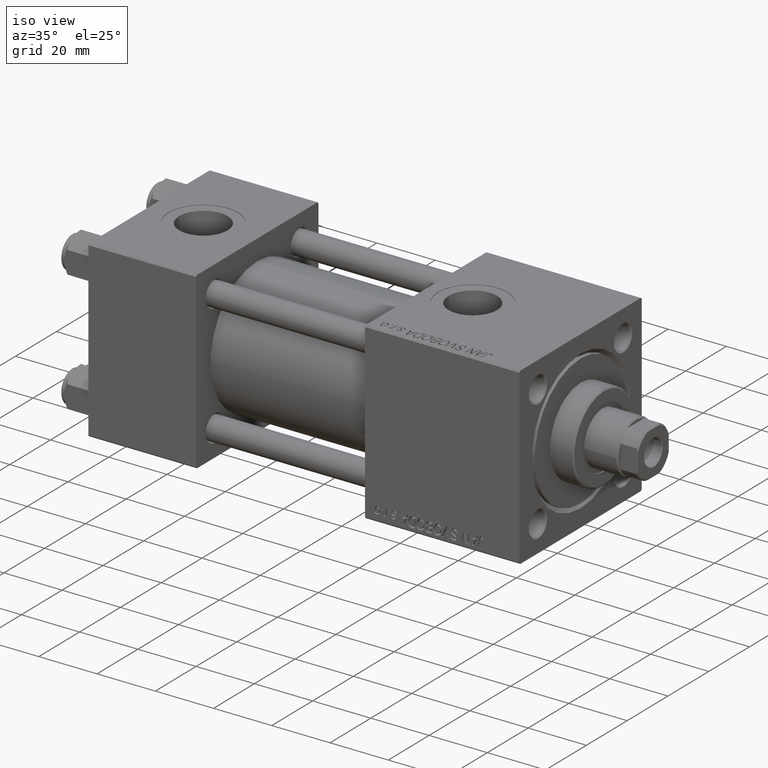
[diagram: clean part render]
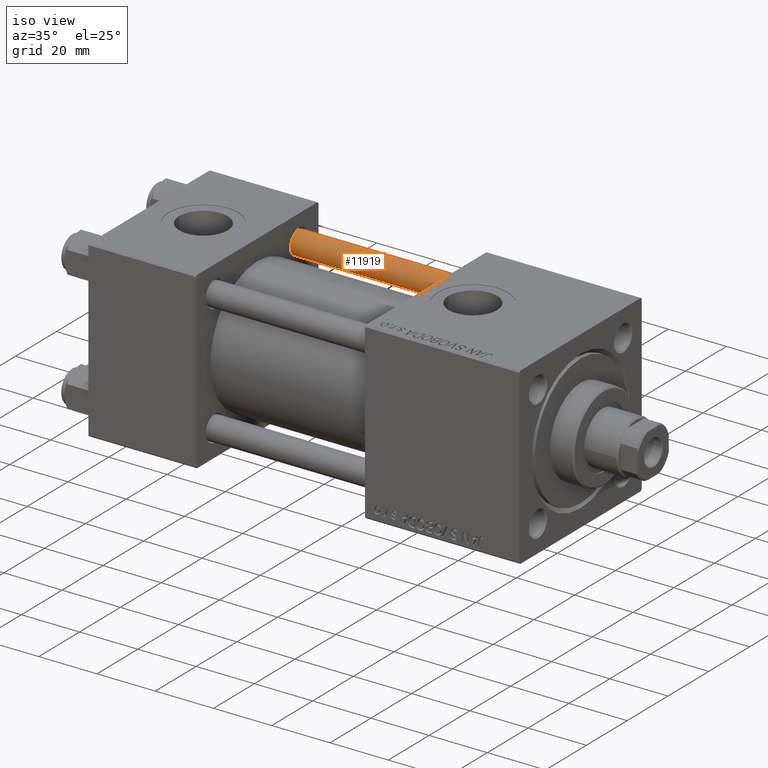
[diagram: same view with one face highlighted and labeled with its STEP entity id]
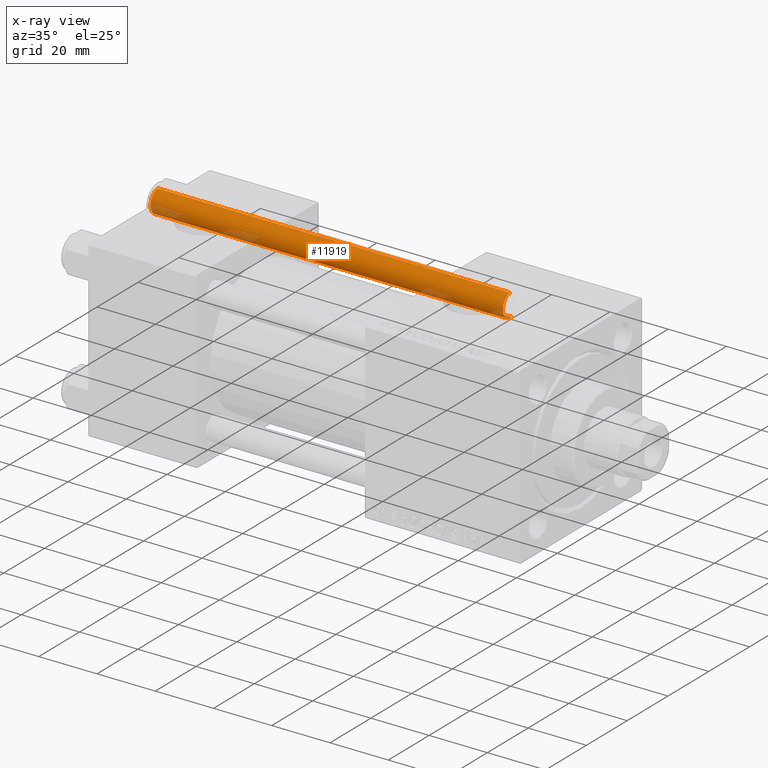
[diagram: x-ray of the same camera — body ghosted, the highlighted face saturated]
A machine part, iso view. The second image highlights one B-rep face of the part: STEP entity #11919.
The next image is the same camera in x-ray: the body ghosted, the highlighted face saturated — about 9% of this face is hidden behind the body in this view.
In plain terms, the highlighted cylindrical surface (edge-blend (fillet) strip) has radius 4 mm, axis along (-1, 0, 0).
Its self-contained STEP definition (entity closure, byte-faithful):
#124 = VERTEX_POINT ( 'NONE', #43378 ) ;
#296 = EDGE_CURVE ( 'NONE', #36885, #124, #24400, .T. ) ;
#2114 = DIRECTION ( 'NONE',  ( 0.000000000000000000, 0.000000000000000000, -1.000000000000000000 ) ) ;
#2136 = CARTESIAN_POINT ( 'NONE',  ( 0.000000000000000000, 0.000000000000000000, 122.0000000000000000 ) ) ;
#5840 = DIRECTION ( 'NONE',  ( 1.000000000000000000, 0.000000000000000000, 0.000000000000000000 ) ) ;
#7117 = DIRECTION ( 'NONE',  ( -1.000000000000000000, 0.000000000000000000, 0.000000000000000000 ) ) ;
#7511 = AXIS2_PLACEMENT_3D ( 'NONE', #10812, #2114, #18211 ) ;
#10812 = CARTESIAN_POINT ( 'NONE',  ( 0.000000000000000000, 0.000000000000000000, 121.5000000000000426 ) ) ;
#11919 = ADVANCED_FACE ( 'NONE', ( #23221 ), #42573, .T. ) ;
#12986 = CARTESIAN_POINT ( 'NONE',  ( 4.000000000000000000, 4.898587196589411843E-16, 0.5000000000000559552 ) ) ;
#13113 = VERTEX_POINT ( 'NONE', #12986 ) ;
#13927 = LINE ( 'NONE', #17620, #34846 ) ;
#15314 = ORIENTED_EDGE ( 'NONE', *, *, #296, .T. ) ;
#16059 = EDGE_CURVE ( 'NONE', #124, #35758, #13927, .T. ) ;
#17620 = CARTESIAN_POINT ( 'NONE',  ( -4.000000000000000000, 0.000000000000000000, 122.0000000000000000 ) ) ;
#17932 = AXIS2_PLACEMENT_3D ( 'NONE', #2136, #35414, #7117 ) ;
#18211 = DIRECTION ( 'NONE',  ( 1.000000000000000000, 0.000000000000000000, 0.000000000000000000 ) ) ;
#21247 = EDGE_CURVE ( 'NONE', #35758, #13113, #38408, .T. ) ;
#23200 = CARTESIAN_POINT ( 'NONE',  ( 4.000000000000000000, 4.898587196589411843E-16, 122.0000000000000000 ) ) ;
#23221 = FACE_OUTER_BOUND ( 'NONE', #25119, .T. ) ;
#23360 = ORIENTED_EDGE ( 'NONE', *, *, #21247, .T. ) ;
#24400 = CIRCLE ( 'NONE', #7511, 4.000000000000000000 ) ;
#25119 = EDGE_LOOP ( 'NONE', ( #48303, #15314, #47078, #23360 ) ) ;
#26017 = CARTESIAN_POINT ( 'NONE',  ( -4.000000000000000000, 0.000000000000000000, 0.5000000000000559552 ) ) ;
#29106 = AXIS2_PLACEMENT_3D ( 'NONE', #46023, #45239, #5840 ) ;
#29736 = CARTESIAN_POINT ( 'NONE',  ( 4.000000000000000000, 4.898587196589411843E-16, 121.5000000000000426 ) ) ;
#30115 = LINE ( 'NONE', #23200, #47308 ) ;
#34846 = VECTOR ( 'NONE', #37468, 1000.000000000000000 ) ;
#35414 = DIRECTION ( 'NONE',  ( -0.000000000000000000, -0.000000000000000000, -1.000000000000000000 ) ) ;
#35758 = VERTEX_POINT ( 'NONE', #26017 ) ;
#36885 = VERTEX_POINT ( 'NONE', #29736 ) ;
#37468 = DIRECTION ( 'NONE',  ( -0.000000000000000000, -0.000000000000000000, -1.000000000000000000 ) ) ;
#38408 = CIRCLE ( 'NONE', #29106, 4.000000000000000000 ) ;
#39098 = DIRECTION ( 'NONE',  ( -0.000000000000000000, -0.000000000000000000, -1.000000000000000000 ) ) ;
#42573 = CYLINDRICAL_SURFACE ( 'NONE', #17932, 4.000000000000000000 ) ;
#43378 = CARTESIAN_POINT ( 'NONE',  ( -4.000000000000000000, 0.000000000000000000, 121.5000000000000426 ) ) ;
#45239 = DIRECTION ( 'NONE',  ( -0.000000000000000000, -0.000000000000000000, 1.000000000000000000 ) ) ;
#46023 = CARTESIAN_POINT ( 'NONE',  ( 0.000000000000000000, 0.000000000000000000, 0.5000000000000559552 ) ) ;
#47078 = ORIENTED_EDGE ( 'NONE', *, *, #16059, .T. ) ;
#47308 = VECTOR ( 'NONE', #39098, 1000.000000000000000 ) ;
#48303 = ORIENTED_EDGE ( 'NONE', *, *, #52115, .F. ) ;
#52115 = EDGE_CURVE ( 'NONE', #36885, #13113, #30115, .T. ) ;